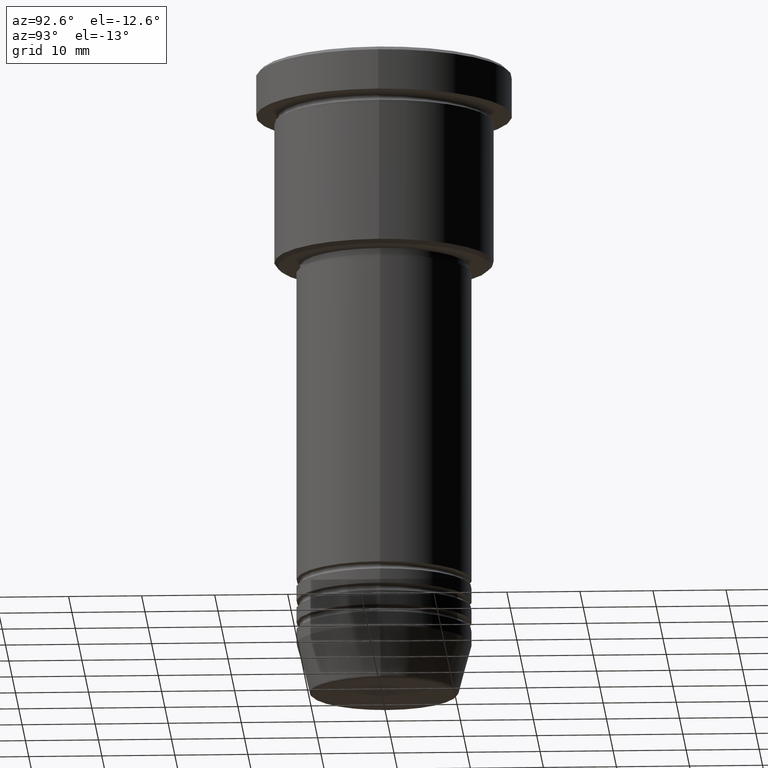
[diagram: clean part render]
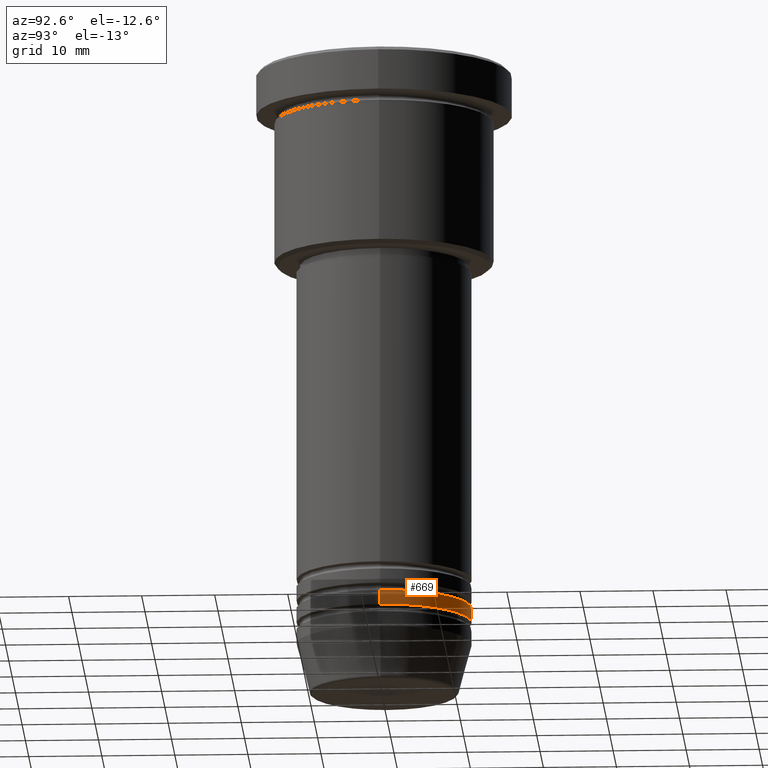
[diagram: same view with one face highlighted and labeled with its STEP entity id]
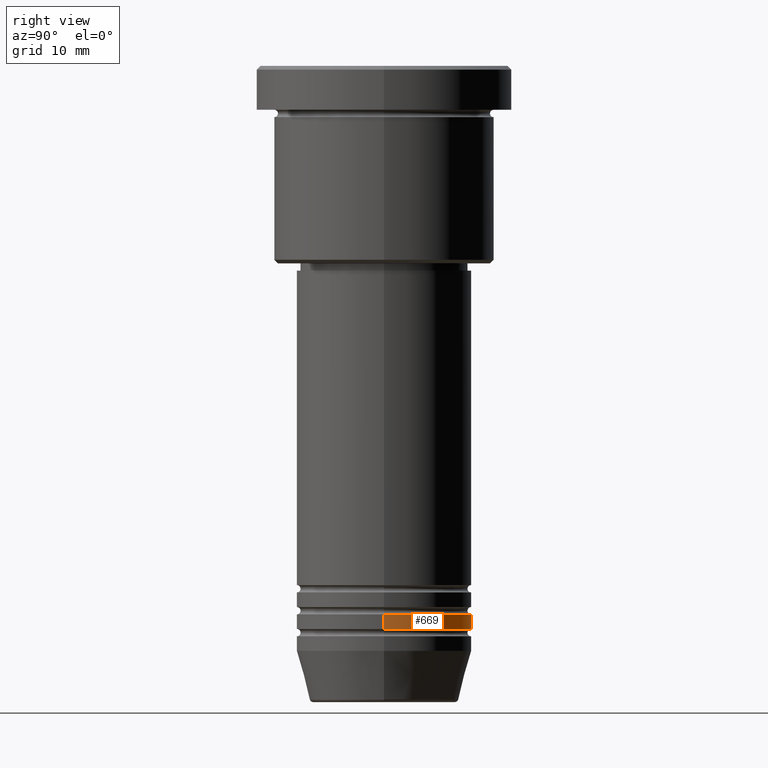
[diagram: same view with one face highlighted and labeled with its STEP entity id]
A machine part, auxiliary view. The second image highlights one B-rep face of the part: STEP entity #669.
A second angle (right view) of the same face is appended — the face is thin or edge-on in the first view.
In plain terms, the highlighted cylindrical surface (partial cylindrical patch) has radius 12 mm, axis along (-0, -0, 1).
Its self-contained STEP definition (entity closure, byte-faithful):
#51 = DIRECTION ( 'NONE',  ( -0.000000000000000000, -0.000000000000000000, 1.000000000000000000 ) ) ;
#53 = FACE_OUTER_BOUND ( 'NONE', #168, .T. ) ;
#69 = CARTESIAN_POINT ( 'NONE',  ( -12.00000000000000000, 1.469576158976823947E-15, -76.99999999999997158 ) ) ;
#71 = CARTESIAN_POINT ( 'NONE',  ( 0.000000000000000000, 0.000000000000000000, 0.000000000000000000 ) ) ;
#75 = DIRECTION ( 'NONE',  ( -0.000000000000000000, -0.000000000000000000, 1.000000000000000000 ) ) ;
#93 = EDGE_CURVE ( 'NONE', #421, #1144, #662, .T. ) ;
#98 = ORIENTED_EDGE ( 'NONE', *, *, #1097, .F. ) ;
#117 = AXIS2_PLACEMENT_3D ( 'NONE', #71, #864, #681 ) ;
#146 = CARTESIAN_POINT ( 'NONE',  ( 12.00000000000000000, 0.000000000000000000, 0.000000000000000000 ) ) ;
#168 = EDGE_LOOP ( 'NONE', ( #1059, #427, #720, #98 ) ) ;
#169 = CARTESIAN_POINT ( 'NONE',  ( -12.00000000000000000, 1.469576158976823947E-15, -74.99999999999997158 ) ) ;
#174 = CARTESIAN_POINT ( 'NONE',  ( 12.00000000000000000, 0.000000000000000000, -74.99999999999997158 ) ) ;
#330 = DIRECTION ( 'NONE',  ( -0.000000000000000000, -0.000000000000000000, 1.000000000000000000 ) ) ;
#350 = DIRECTION ( 'NONE',  ( 1.000000000000000000, 0.000000000000000000, 0.000000000000000000 ) ) ;
#405 = CIRCLE ( 'NONE', #1030, 12.00000000000000000 ) ;
#421 = VERTEX_POINT ( 'NONE', #1009 ) ;
#427 = ORIENTED_EDGE ( 'NONE', *, *, #1055, .T. ) ;
#662 = CIRCLE ( 'NONE', #687, 12.00000000000000000 ) ;
#667 = VECTOR ( 'NONE', #330, 1000.000000000000000 ) ;
#669 = ADVANCED_FACE ( 'NONE', ( #53 ), #695, .T. ) ;
#675 = LINE ( 'NONE', #862, #667 ) ;
#679 = VERTEX_POINT ( 'NONE', #169 ) ;
#681 = DIRECTION ( 'NONE',  ( 1.000000000000000000, 0.000000000000000000, 0.000000000000000000 ) ) ;
#687 = AXIS2_PLACEMENT_3D ( 'NONE', #1136, #739, #1003 ) ;
#695 = CYLINDRICAL_SURFACE ( 'NONE', #117, 12.00000000000000000 ) ;
#720 = ORIENTED_EDGE ( 'NONE', *, *, #1181, .F. ) ;
#739 = DIRECTION ( 'NONE',  ( -0.000000000000000000, -0.000000000000000000, 1.000000000000000000 ) ) ;
#862 = CARTESIAN_POINT ( 'NONE',  ( -12.00000000000000000, 1.469576158976823947E-15, 0.000000000000000000 ) ) ;
#863 = VERTEX_POINT ( 'NONE', #174 ) ;
#864 = DIRECTION ( 'NONE',  ( -0.000000000000000000, -0.000000000000000000, 1.000000000000000000 ) ) ;
#950 = LINE ( 'NONE', #146, #1047 ) ;
#976 = CARTESIAN_POINT ( 'NONE',  ( 0.000000000000000000, 0.000000000000000000, -74.99999999999997158 ) ) ;
#1003 = DIRECTION ( 'NONE',  ( 1.000000000000000000, 0.000000000000000000, 0.000000000000000000 ) ) ;
#1009 = CARTESIAN_POINT ( 'NONE',  ( 12.00000000000000000, 0.000000000000000000, -76.99999999999997158 ) ) ;
#1030 = AXIS2_PLACEMENT_3D ( 'NONE', #976, #75, #350 ) ;
#1047 = VECTOR ( 'NONE', #51, 1000.000000000000000 ) ;
#1055 = EDGE_CURVE ( 'NONE', #1144, #679, #675, .T. ) ;
#1059 = ORIENTED_EDGE ( 'NONE', *, *, #93, .T. ) ;
#1097 = EDGE_CURVE ( 'NONE', #421, #863, #950, .T. ) ;
#1136 = CARTESIAN_POINT ( 'NONE',  ( 0.000000000000000000, 0.000000000000000000, -76.99999999999997158 ) ) ;
#1144 = VERTEX_POINT ( 'NONE', #69 ) ;
#1181 = EDGE_CURVE ( 'NONE', #863, #679, #405, .T. ) ;